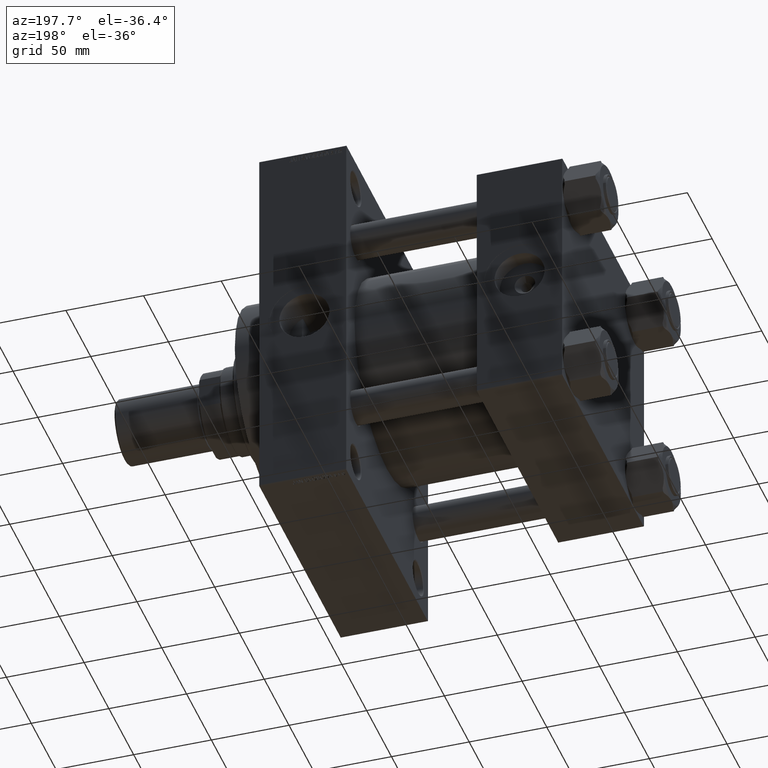
[diagram: clean part render]
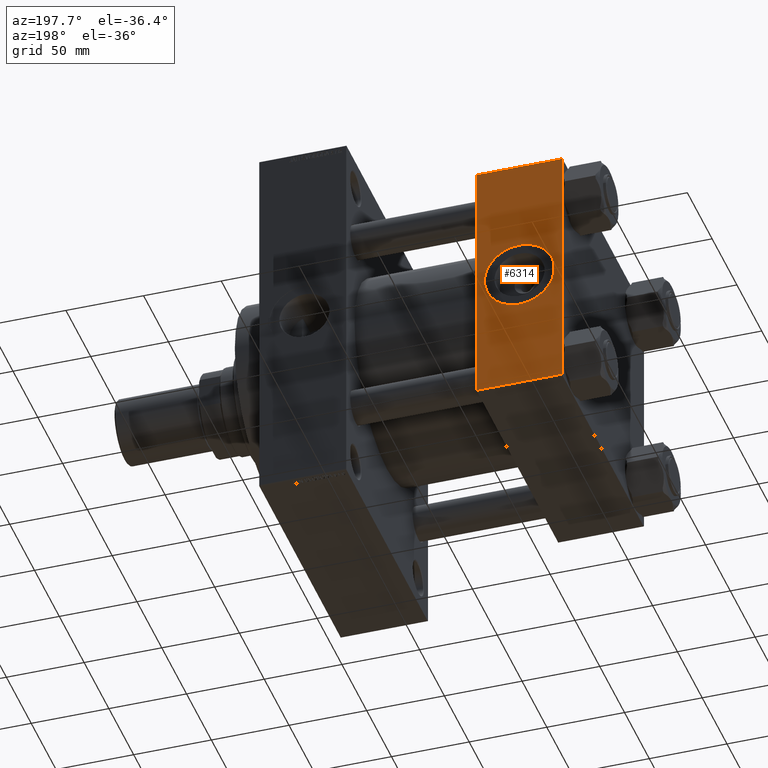
[diagram: same view with one face highlighted and labeled with its STEP entity id]
A machine part, auxiliary view. The second image highlights one B-rep face of the part: STEP entity #6314.
In plain terms, the highlighted planar face has unit normal (0, 1, 0).
Its self-contained STEP definition (entity closure, byte-faithful):
#1709 = VECTOR ( 'NONE', #13121, 1000.000000000000000 ) ;
#2658 = VERTEX_POINT ( 'NONE', #21347 ) ;
#3009 = EDGE_CURVE ( 'NONE', #38899, #14105, #17638, .T. ) ;
#5624 = DIRECTION ( 'NONE',  ( 0.000000000000000000, -0.000000000000000000, 1.000000000000000000 ) ) ;
#5683 = DIRECTION ( 'NONE',  ( 0.000000000000000000, 0.000000000000000000, -1.000000000000000000 ) ) ;
#5858 = PLANE ( 'NONE',  #30100 ) ;
#6189 = CARTESIAN_POINT ( 'NONE',  ( 55.00000000000000000, 82.50000000000002842, 82.00000000000005684 ) ) ;
#6314 = ADVANCED_FACE ( 'NONE', ( #10019, #16846 ), #5858, .T. ) ;
#7036 = VERTEX_POINT ( 'NONE', #44150 ) ;
#10019 = FACE_BOUND ( 'NONE', #41351, .T. ) ;
#10695 = EDGE_LOOP ( 'NONE', ( #16836, #27222, #39946, #11851 ) ) ;
#11851 = ORIENTED_EDGE ( 'NONE', *, *, #39257, .T. ) ;
#13121 = DIRECTION ( 'NONE',  ( 0.000000000000000000, 0.000000000000000000, -1.000000000000000000 ) ) ;
#13581 = CARTESIAN_POINT ( 'NONE',  ( 27.50000000000000000, 82.50000000000002842, 0.000000000000000000 ) ) ;
#14105 = VERTEX_POINT ( 'NONE', #24583 ) ;
#16705 = ORIENTED_EDGE ( 'NONE', *, *, #19063, .F. ) ;
#16836 = ORIENTED_EDGE ( 'NONE', *, *, #32754, .T. ) ;
#16846 = FACE_OUTER_BOUND ( 'NONE', #10695, .T. ) ;
#17638 = LINE ( 'NONE', #32473, #27749 ) ;
#17755 = AXIS2_PLACEMENT_3D ( 'NONE', #13581, #32818, #43277 ) ;
#17886 = VECTOR ( 'NONE', #18495, 1000.000000000000000 ) ;
#18336 = ORIENTED_EDGE ( 'NONE', *, *, #37294, .F. ) ;
#18495 = DIRECTION ( 'NONE',  ( -1.000000000000000000, 0.000000000000000000, 0.000000000000000000 ) ) ;
#18985 = VECTOR ( 'NONE', #32512, 1000.000000000000000 ) ;
#19063 = EDGE_CURVE ( 'NONE', #2658, #29874, #41843, .T. ) ;
#20439 = CARTESIAN_POINT ( 'NONE',  ( 55.00000000000000000, 82.50000000000002842, 82.50000000000002842 ) ) ;
#20732 = DIRECTION ( 'NONE',  ( -0.000000000000000000, 1.000000000000000000, 0.000000000000000000 ) ) ;
#20923 = LINE ( 'NONE', #20439, #1709 ) ;
#21120 = DIRECTION ( 'NONE',  ( 0.000000000000000000, 0.000000000000000000, 1.000000000000000000 ) ) ;
#21347 = CARTESIAN_POINT ( 'NONE',  ( 27.50000000000000000, 82.50000000000002842, 22.50000000000000711 ) ) ;
#23541 = LINE ( 'NONE', #24248, #18985 ) ;
#24248 = CARTESIAN_POINT ( 'NONE',  ( 55.00000000000000000, 82.50000000000002842, 82.00000000000005684 ) ) ;
#24583 = CARTESIAN_POINT ( 'NONE',  ( 0.000000000000000000, 82.50000000000002842, -82.00000000000000000 ) ) ;
#24776 = CARTESIAN_POINT ( 'NONE',  ( 27.50000000000000000, 82.50000000000002842, 0.000000000000000000 ) ) ;
#26369 = EDGE_CURVE ( 'NONE', #7036, #14105, #44768, .T. ) ;
#27222 = ORIENTED_EDGE ( 'NONE', *, *, #26369, .T. ) ;
#27709 = CARTESIAN_POINT ( 'NONE',  ( 0.000000000000000000, 82.50000000000002842, 82.00000000000005684 ) ) ;
#27749 = VECTOR ( 'NONE', #5683, 1000.000000000000000 ) ;
#28767 = CARTESIAN_POINT ( 'NONE',  ( 55.00000000000000000, 82.50000000000002842, 82.50000000000002842 ) ) ;
#29797 = AXIS2_PLACEMENT_3D ( 'NONE', #24776, #43505, #21120 ) ;
#29874 = VERTEX_POINT ( 'NONE', #37983 ) ;
#30100 = AXIS2_PLACEMENT_3D ( 'NONE', #28767, #20732, #5624 ) ;
#30177 = CARTESIAN_POINT ( 'NONE',  ( 55.00000000000000000, 82.50000000000002842, -82.00000000000000000 ) ) ;
#32473 = CARTESIAN_POINT ( 'NONE',  ( 0.000000000000000000, 82.50000000000002842, 82.50000000000002842 ) ) ;
#32512 = DIRECTION ( 'NONE',  ( 1.000000000000000000, 0.000000000000000000, 0.000000000000000000 ) ) ;
#32754 = EDGE_CURVE ( 'NONE', #38013, #7036, #20923, .T. ) ;
#32818 = DIRECTION ( 'NONE',  ( 0.000000000000000000, 1.000000000000000000, 0.000000000000000000 ) ) ;
#37294 = EDGE_CURVE ( 'NONE', #29874, #2658, #47683, .T. ) ;
#37983 = CARTESIAN_POINT ( 'NONE',  ( 27.50000000000000355, 82.50000000000002842, -22.50000000000000711 ) ) ;
#38013 = VERTEX_POINT ( 'NONE', #6189 ) ;
#38899 = VERTEX_POINT ( 'NONE', #27709 ) ;
#39257 = EDGE_CURVE ( 'NONE', #38899, #38013, #23541, .T. ) ;
#39946 = ORIENTED_EDGE ( 'NONE', *, *, #3009, .F. ) ;
#41351 = EDGE_LOOP ( 'NONE', ( #16705, #18336 ) ) ;
#41843 = CIRCLE ( 'NONE', #17755, 22.50000000000000711 ) ;
#43277 = DIRECTION ( 'NONE',  ( 0.000000000000000000, 0.000000000000000000, 1.000000000000000000 ) ) ;
#43505 = DIRECTION ( 'NONE',  ( 0.000000000000000000, 1.000000000000000000, 0.000000000000000000 ) ) ;
#44150 = CARTESIAN_POINT ( 'NONE',  ( 55.00000000000000000, 82.50000000000002842, -82.00000000000000000 ) ) ;
#44768 = LINE ( 'NONE', #30177, #17886 ) ;
#47683 = CIRCLE ( 'NONE', #29797, 22.50000000000000711 ) ;